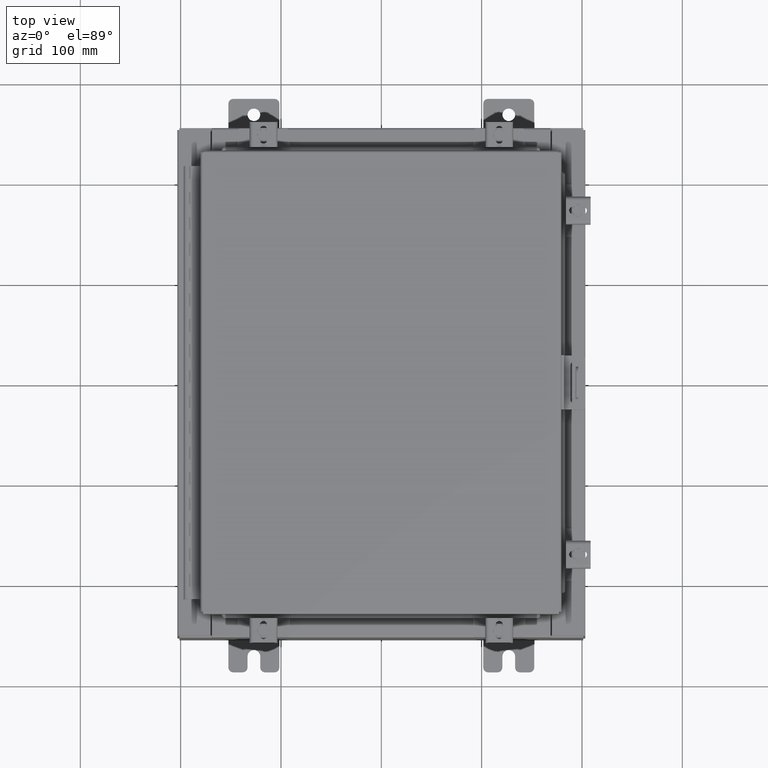
[diagram: clean part render]
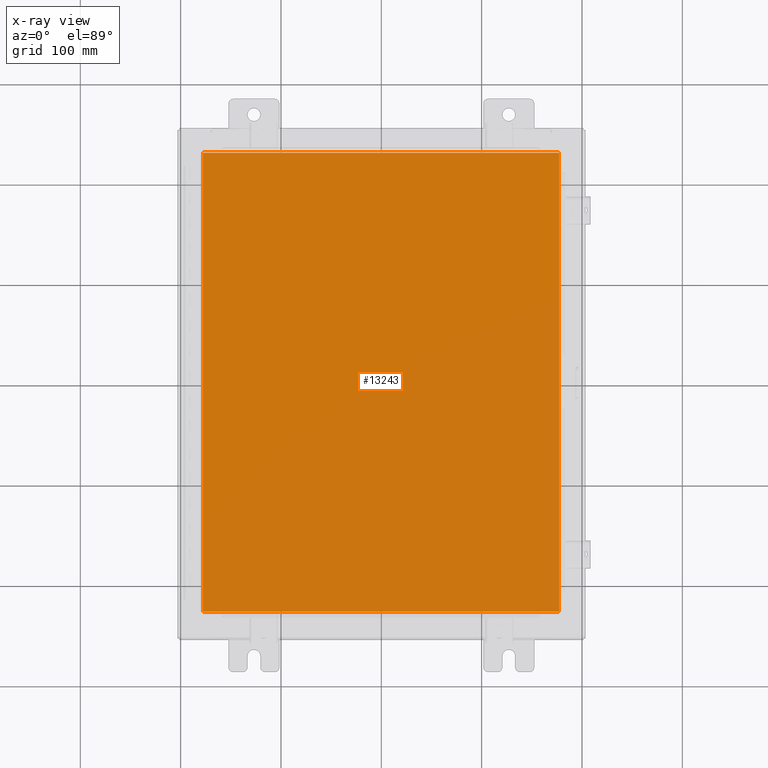
[diagram: x-ray — body ghosted, one internal face saturated and labeled with its STEP entity id]
A machine part, top view, then the same camera in x-ray: the body is ghosted and one INTERNAL B-rep face — a face not visible from any outside direction — is saturated and labeled: STEP entity #13243.
In plain terms, the highlighted planar face has unit normal (0, 0, -1).
Its self-contained STEP definition (entity closure, byte-faithful):
#798 = EDGE_CURVE ( 'NONE', #18800, #1396, #21701, .T. ) ;
#826 = CARTESIAN_POINT ( 'NONE',  ( -6.990299999999997700, -9.006299999999997800, -0.07470000000000019700 ) ) ;
#1396 = VERTEX_POINT ( 'NONE', #15037 ) ;
#2132 = CARTESIAN_POINT ( 'NONE',  ( -6.990299999999996800, -9.006299999999997800, -0.07470000000000000300 ) ) ;
#2735 = VERTEX_POINT ( 'NONE', #5483 ) ;
#2788 = FACE_OUTER_BOUND ( 'NONE', #9866, .T. ) ;
#3662 = DIRECTION ( 'NONE',  ( 1.000000000000000000, -0.0000000000000000000, -0.0000000000000000000 ) ) ;
#4067 = LINE ( 'NONE', #10101, #9546 ) ;
#4241 = LINE ( 'NONE', #26292, #16590 ) ;
#5483 = CARTESIAN_POINT ( 'NONE',  ( -6.990299999999997700, 9.006299999999999500, -0.07470000000000000300 ) ) ;
#5547 = ORIENTED_EDGE ( 'NONE', *, *, #24637, .F. ) ;
#6160 = DIRECTION ( 'NONE',  ( 0.0000000000000000000, -1.000000000000000000, 0.0000000000000000000 ) ) ;
#9162 = CARTESIAN_POINT ( 'NONE',  ( 0.0000000000000000000, 0.0000000000000000000, -0.07470000000000000300 ) ) ;
#9546 = VECTOR ( 'NONE', #9665, 39.37007874015748100 ) ;
#9585 = PLANE ( 'NONE',  #9979 ) ;
#9665 = DIRECTION ( 'NONE',  ( -1.000000000000000000, -0.0000000000000000000, -0.0000000000000000000 ) ) ;
#9866 = EDGE_LOOP ( 'NONE', ( #13611, #14483, #23034, #5547 ) ) ;
#9979 = AXIS2_PLACEMENT_3D ( 'NONE', #9162, #17052, #12251 ) ;
#10101 = CARTESIAN_POINT ( 'NONE',  ( 6.990300000000002200, 9.006300000000001300, -0.07470000000000073800 ) ) ;
#11392 = CARTESIAN_POINT ( 'NONE',  ( -6.990299999999997700, 9.006300000000001300, -0.07470000000000019700 ) ) ;
#11589 = EDGE_CURVE ( 'NONE', #1396, #16047, #4241, .T. ) ;
#12251 = DIRECTION ( 'NONE',  ( -1.000000000000000000, 0.0000000000000000000, -0.0000000000000000000 ) ) ;
#13243 = ADVANCED_FACE ( 'NONE', ( #2788 ), #9585, .T. ) ;
#13611 = ORIENTED_EDGE ( 'NONE', *, *, #11589, .F. ) ;
#14483 = ORIENTED_EDGE ( 'NONE', *, *, #798, .F. ) ;
#15037 = CARTESIAN_POINT ( 'NONE',  ( 6.990300000000002200, -9.006299999999997800, -0.07470000000000000300 ) ) ;
#16047 = VERTEX_POINT ( 'NONE', #20182 ) ;
#16590 = VECTOR ( 'NONE', #21518, 39.37007874015748100 ) ;
#17052 = DIRECTION ( 'NONE',  ( 0.0000000000000000000, 0.0000000000000000000, -1.000000000000000000 ) ) ;
#18800 = VERTEX_POINT ( 'NONE', #2132 ) ;
#19567 = VECTOR ( 'NONE', #6160, 39.37007874015748100 ) ;
#20182 = CARTESIAN_POINT ( 'NONE',  ( 6.990300000000001300, 9.006300000000001300, -0.07470000000000000300 ) ) ;
#21518 = DIRECTION ( 'NONE',  ( 0.0000000000000000000, 1.000000000000000000, 0.0000000000000000000 ) ) ;
#21701 = LINE ( 'NONE', #826, #27781 ) ;
#23034 = ORIENTED_EDGE ( 'NONE', *, *, #26775, .F. ) ;
#24637 = EDGE_CURVE ( 'NONE', #16047, #2735, #4067, .T. ) ;
#26292 = CARTESIAN_POINT ( 'NONE',  ( 6.990300000000002200, -9.006299999999997800, -0.07470000000000019700 ) ) ;
#26775 = EDGE_CURVE ( 'NONE', #2735, #18800, #27101, .T. ) ;
#27101 = LINE ( 'NONE', #11392, #19567 ) ;
#27781 = VECTOR ( 'NONE', #3662, 39.37007874015748100 ) ;